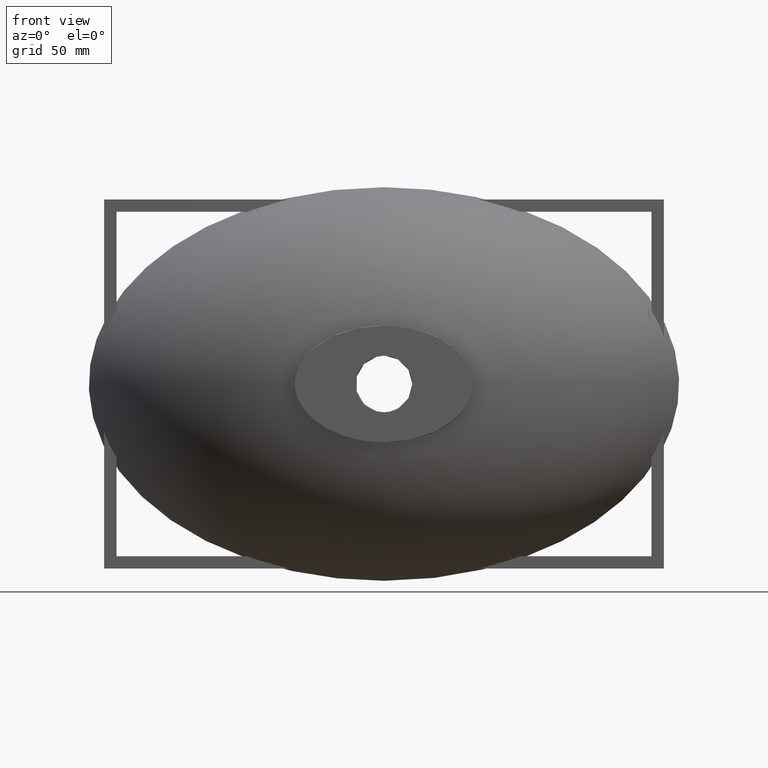
[diagram: clean part render]
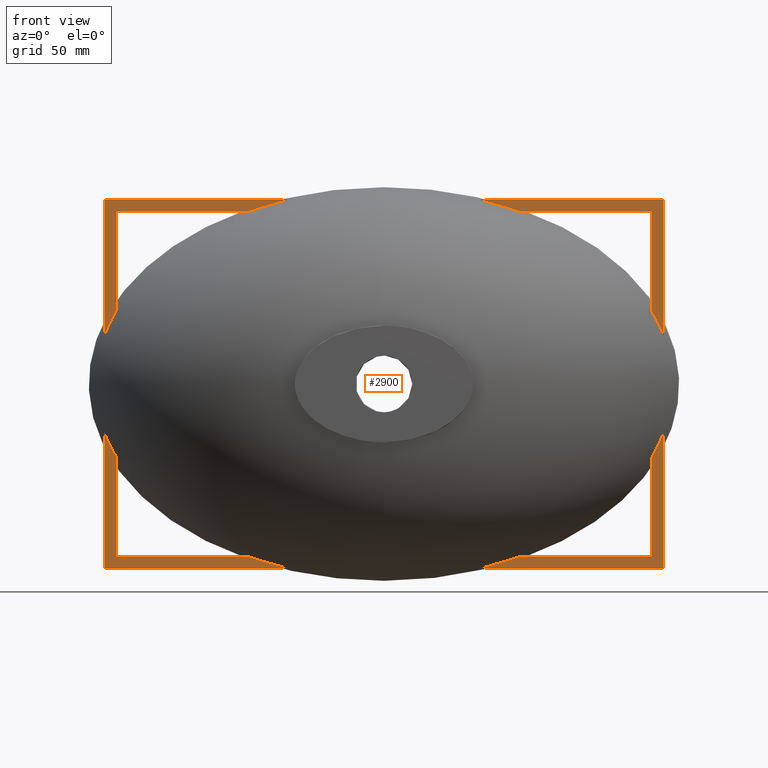
[diagram: same view with one face highlighted and labeled with its STEP entity id]
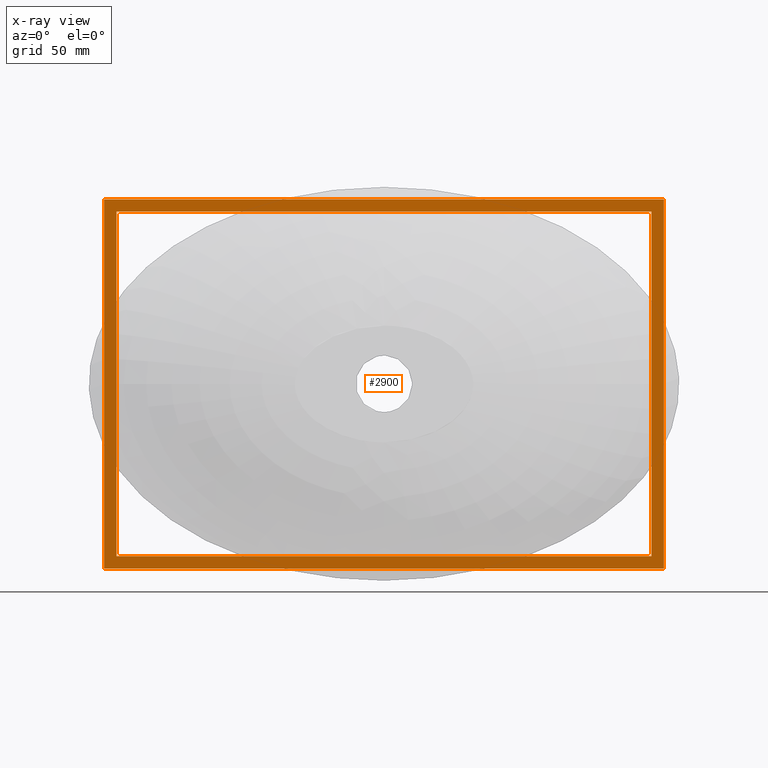
[diagram: x-ray of the same camera — body ghosted, the highlighted face saturated]
A machine part, front view. The second image highlights one B-rep face of the part: STEP entity #2900.
The next image is the same camera in x-ray: the body ghosted, the highlighted face saturated — about 0% of this face is hidden behind the body in this view.
In plain terms, the highlighted planar face has unit normal (0, -1, 0).
Its self-contained STEP definition (entity closure, byte-faithful):
#2 = AXIS2_PLACEMENT_3D ( 'NONE', #416, #43, #3023 ) ;
#14 = ORIENTED_EDGE ( 'NONE', *, *, #2901, .T. ) ;
#43 = DIRECTION ( 'NONE',  ( 0.0000000000000000000, -1.000000000000000000, 0.0000000000000000000 ) ) ;
#53 = VECTOR ( 'NONE', #484, 1000.000000000000000 ) ;
#79 = EDGE_CURVE ( 'NONE', #953, #2416, #856, .T. ) ;
#170 = VERTEX_POINT ( 'NONE', #1966 ) ;
#184 = EDGE_CURVE ( 'NONE', #2634, #170, #212, .T. ) ;
#196 = EDGE_CURVE ( 'NONE', #2416, #2760, #1850, .T. ) ;
#212 = LINE ( 'NONE', #3066, #53 ) ;
#214 = CARTESIAN_POINT ( 'NONE',  ( -217.5000000000001400, -10.00000000000000000, 140.0000000000000300 ) ) ;
#222 = CARTESIAN_POINT ( 'NONE',  ( 227.5000000000002000, -10.00000000000000000, 150.0000000000000600 ) ) ;
#245 = EDGE_CURVE ( 'NONE', #3034, #2634, #1659, .T. ) ;
#416 = CARTESIAN_POINT ( 'NONE',  ( 0.0000000000000000000, -10.00000000000000000, 0.0000000000000000000 ) ) ;
#484 = DIRECTION ( 'NONE',  ( -1.000000000000000000, -0.0000000000000000000, -6.100126508929428400E-017 ) ) ;
#541 = CARTESIAN_POINT ( 'NONE',  ( 227.5000000000002000, -10.00000000000000000, 150.0000000000000600 ) ) ;
#572 = CARTESIAN_POINT ( 'NONE',  ( -217.5000000000001400, -10.00000000000000000, 140.0000000000000300 ) ) ;
#597 = VECTOR ( 'NONE', #2400, 1000.000000000000000 ) ;
#605 = CARTESIAN_POINT ( 'NONE',  ( -227.5000000000001400, -10.00000000000000000, 150.0000000000000600 ) ) ;
#639 = FACE_BOUND ( 'NONE', #2223, .T. ) ;
#738 = CARTESIAN_POINT ( 'NONE',  ( -227.5000000000001400, -10.00000000000000000, 150.0000000000000600 ) ) ;
#848 = VECTOR ( 'NONE', #2660, 1000.000000000000000 ) ;
#856 = LINE ( 'NONE', #1015, #2089 ) ;
#920 = VECTOR ( 'NONE', #1674, 1000.000000000000000 ) ;
#953 = VERTEX_POINT ( 'NONE', #1315 ) ;
#979 = ORIENTED_EDGE ( 'NONE', *, *, #1589, .T. ) ;
#982 = VERTEX_POINT ( 'NONE', #1332 ) ;
#987 = ORIENTED_EDGE ( 'NONE', *, *, #2611, .F. ) ;
#1015 = CARTESIAN_POINT ( 'NONE',  ( -217.5000000000001400, -10.00000000000000000, -140.0000000000000300 ) ) ;
#1031 = LINE ( 'NONE', #572, #2016 ) ;
#1157 = VECTOR ( 'NONE', #2650, 1000.000000000000000 ) ;
#1295 = LINE ( 'NONE', #2468, #597 ) ;
#1315 = CARTESIAN_POINT ( 'NONE',  ( 217.5000000000001700, -10.00000000000000000, -140.0000000000000300 ) ) ;
#1331 = EDGE_CURVE ( 'NONE', #3094, #3034, #1295, .T. ) ;
#1332 = CARTESIAN_POINT ( 'NONE',  ( 217.5000000000001700, -10.00000000000000000, 140.0000000000000300 ) ) ;
#1589 = EDGE_CURVE ( 'NONE', #982, #953, #1703, .T. ) ;
#1659 = LINE ( 'NONE', #222, #848 ) ;
#1666 = LINE ( 'NONE', #605, #920 ) ;
#1674 = DIRECTION ( 'NONE',  ( -0.0000000000000000000, -0.0000000000000000000, 1.000000000000000000 ) ) ;
#1703 = LINE ( 'NONE', #2885, #2054 ) ;
#1742 = DIRECTION ( 'NONE',  ( 1.000000000000000000, 0.0000000000000000000, 0.0000000000000000000 ) ) ;
#1745 = EDGE_LOOP ( 'NONE', ( #987, #2398, #2159, #2093 ) ) ;
#1782 = CARTESIAN_POINT ( 'NONE',  ( 227.5000000000001700, -10.00000000000000000, -150.0000000000000300 ) ) ;
#1823 = PLANE ( 'NONE',  #2 ) ;
#1850 = LINE ( 'NONE', #214, #1157 ) ;
#1891 = DIRECTION ( 'NONE',  ( 0.0000000000000000000, 0.0000000000000000000, -1.000000000000000000 ) ) ;
#1966 = CARTESIAN_POINT ( 'NONE',  ( -227.5000000000001400, -10.00000000000000000, -150.0000000000000600 ) ) ;
#2016 = VECTOR ( 'NONE', #1742, 1000.000000000000000 ) ;
#2054 = VECTOR ( 'NONE', #1891, 1000.000000000000000 ) ;
#2089 = VECTOR ( 'NONE', #3121, 1000.000000000000000 ) ;
#2093 = ORIENTED_EDGE ( 'NONE', *, *, #1331, .F. ) ;
#2159 = ORIENTED_EDGE ( 'NONE', *, *, #245, .F. ) ;
#2223 = EDGE_LOOP ( 'NONE', ( #979, #2466, #3128, #14 ) ) ;
#2240 = FACE_OUTER_BOUND ( 'NONE', #1745, .T. ) ;
#2398 = ORIENTED_EDGE ( 'NONE', *, *, #184, .F. ) ;
#2400 = DIRECTION ( 'NONE',  ( 1.000000000000000000, 0.0000000000000000000, 0.0000000000000000000 ) ) ;
#2416 = VERTEX_POINT ( 'NONE', #3009 ) ;
#2466 = ORIENTED_EDGE ( 'NONE', *, *, #79, .T. ) ;
#2468 = CARTESIAN_POINT ( 'NONE',  ( -227.5000000000001400, -10.00000000000000000, 150.0000000000000600 ) ) ;
#2611 = EDGE_CURVE ( 'NONE', #170, #3094, #1666, .T. ) ;
#2634 = VERTEX_POINT ( 'NONE', #1782 ) ;
#2650 = DIRECTION ( 'NONE',  ( -0.0000000000000000000, -0.0000000000000000000, 1.000000000000000000 ) ) ;
#2660 = DIRECTION ( 'NONE',  ( -9.251858538542970300E-017, 0.0000000000000000000, -1.000000000000000000 ) ) ;
#2760 = VERTEX_POINT ( 'NONE', #2778 ) ;
#2778 = CARTESIAN_POINT ( 'NONE',  ( -217.5000000000001400, -10.00000000000000000, 140.0000000000000300 ) ) ;
#2885 = CARTESIAN_POINT ( 'NONE',  ( 217.5000000000001700, -10.00000000000000000, 140.0000000000000300 ) ) ;
#2900 = ADVANCED_FACE ( 'NONE', ( #639, #2240 ), #1823, .T. ) ;
#2901 = EDGE_CURVE ( 'NONE', #2760, #982, #1031, .T. ) ;
#3009 = CARTESIAN_POINT ( 'NONE',  ( -217.5000000000001400, -10.00000000000000000, -140.0000000000000300 ) ) ;
#3023 = DIRECTION ( 'NONE',  ( 0.0000000000000000000, -0.0000000000000000000, -1.000000000000000000 ) ) ;
#3034 = VERTEX_POINT ( 'NONE', #541 ) ;
#3066 = CARTESIAN_POINT ( 'NONE',  ( -227.5000000000001400, -10.00000000000000000, -150.0000000000000600 ) ) ;
#3094 = VERTEX_POINT ( 'NONE', #738 ) ;
#3121 = DIRECTION ( 'NONE',  ( -1.000000000000000000, -0.0000000000000000000, -0.0000000000000000000 ) ) ;
#3128 = ORIENTED_EDGE ( 'NONE', *, *, #196, .T. ) ;